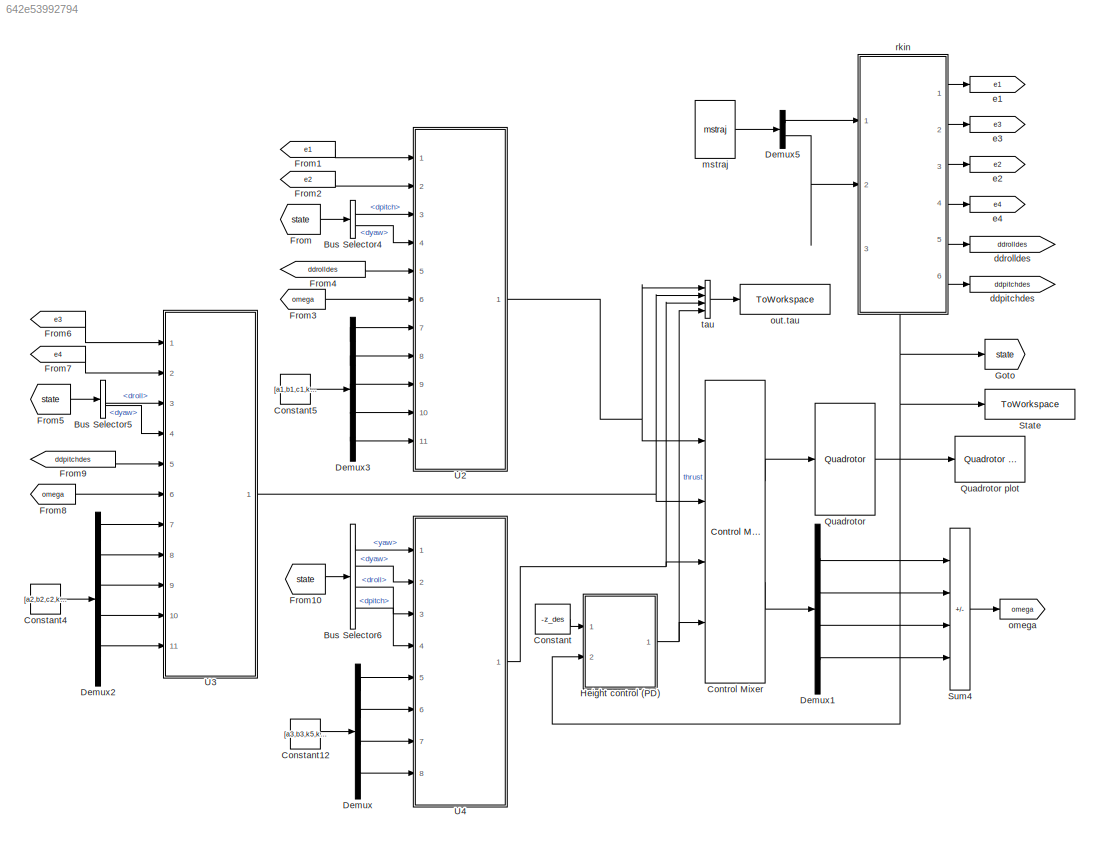
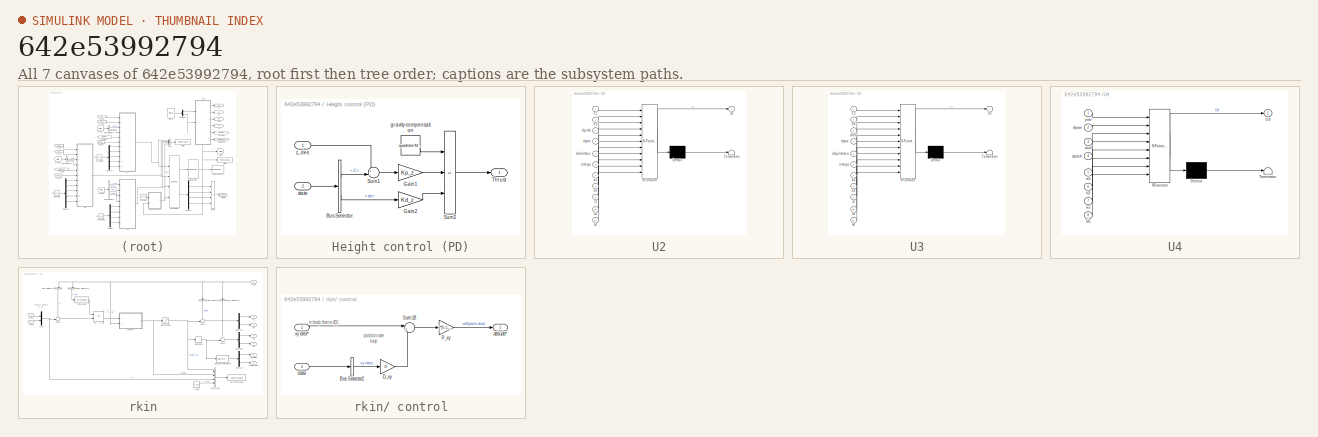
[diagram: thumbnail index - all 7 canvases of the model, root first then tree order]
MODEL slx_642e53992794
KIND model
CONFIG AbsTol = auto
CONFIG EnableMultiTasking = off
CONFIG FixedStep = auto
CONFIG InitFcn = sample_interval = 0.05;\nKp_z = 1000;\nKd_z = 10;\nKp_vel = 0.70;\nKd_vel = 0.2;\nk1 = 65;\nk2 = 25;\nk3 = 65;\nk4 = 25;\nk5 = 60;\nk6 = 55;\nz_des = 5;\n\nmdl_quadrotor;\nJ_x = quadrotor.J(1,1);\nJ_y = quadrotor.J(2,2);\nJ_z = quadrotor.J(3,3);\na1 = (J_y-J_z) / J_x;\na2 = (J_z-J_x) / J_y;\na3 = (J_x-J_y) / J_z;\nb1 = 1 / J_x;\nb2 = 1 / J_y;\nb3 = 1 / J_z;\nc1 = quadrotor.Ir / J_x;\nc2 = quadrotor.Ir / J_y;\nc3 = quadrot...<+12ch>
CONFIG MaxStep = auto
CONFIG MinStep = auto
CONFIG RelTol = 1e-3
CONFIG SampleTimeConstraint = Unconstrained
CONFIG SolverName = VariableStepAuto
CONFIG StartTime = 0.0
CONFIG StopTime = 119.35
BLOCK [BusSelector] Bus Selector4
  OutputSignals = dpitch,dyaw
  Ports = [1, 2]
BLOCK [BusSelector] Bus Selector5
  OutputSignals = droll,dyaw
  Ports = [1, 2]
BLOCK [BusSelector] Bus Selector6
  OutputSignals = yaw,dyaw,droll,dpitch
  Ports = [1, 4]
BLOCK [Constant] Constant
  Value = -z_des
BLOCK [Constant] Constant12
  Value = [a3,b3,k5,k6]
BLOCK [Constant] Constant4
  Value = [a2,b2,c2,k3,k4]
BLOCK [Constant] Constant5
  Value = [a1,b1,c1,k1,k2]
BLOCK [Reference] Control Mixer  REF=roblocks/Vehicles/Control Mixer 4  (lib defined in mdl_2a292b13c81b, mdl_69400f8cfe22, +12 more)
  Ports = [4, 2]
  SourceBlock = roblocks/Vehicles/Control Mixer 4
BLOCK [Demux] Demux
  Ports = [1, 4]
BLOCK [Demux] Demux1
  Ports = [1, 4]
BLOCK [Demux] Demux2
  Outputs = 5
  Ports = [1, 5]
BLOCK [Demux] Demux3
  Outputs = 5
  Ports = [1, 5]
BLOCK [Demux] Demux5
  Outputs = 2
  Ports = [1, 2]
BLOCK [From] From
  GotoTag = state
BLOCK [From] From1
  GotoTag = e1
BLOCK [From] From10
  GotoTag = state
BLOCK [From] From2
  GotoTag = e2
BLOCK [From] From3
  GotoTag = omega
BLOCK [From] From4
  GotoTag = ddrolldes
BLOCK [From] From5
  GotoTag = state
BLOCK [From] From6
  GotoTag = e3
BLOCK [From] From7
  GotoTag = e4
BLOCK [From] From8
  GotoTag = omega
BLOCK [From] From9
  GotoTag = ddpitchdes
BLOCK [Goto] Goto
  GotoTag = state
BLOCK [SubSystem] Height control (PD)
  Ports = [2, 1]
BLOCK [BusSelector] Height control (PD)/Bus Selector
  OutputSignals = Z,dz
  Ports = [1, 2]
BLOCK [Gain] Height control (PD)/Gain1
  Gain = Kp_z
BLOCK [Gain] Height control (PD)/Gain2
  Gain = Kd_z
BLOCK [Sum] Height control (PD)/Sum1
  Inputs = +-|
  Ports = [2, 1]
BLOCK [Sum] Height control (PD)/Sum2
  IconShape = rectangular
  Inputs = +-+
  Ports = [3, 1]
BLOCK [Outport] Height control (PD)/Thrust
BLOCK [Constant] Height control (PD)/gravity compensation
  SampleTime = 0
  Value = quadrotor.M * quadrotor.g
BLOCK [Inport] Height control (PD)/state
  Port = 2
BLOCK [Inport] Height control (PD)/z_des
BLOCK [Reference] Quadrotor  REF=roblocks/Vehicles/Quadrotor  (lib defined in mdl_2a292b13c81b, mdl_69400f8cfe22, +12 more)
  Ports = [1, 1]
  SourceBlock = roblocks/Vehicles/Quadrotor
BLOCK [Reference] Quadrotor plot  REF=roblocks/Vehicles/Quadrotor plot  (lib defined in mdl_2a292b13c81b, mdl_69400f8cfe22, +12 more)
  Commented = on
  Ports = [1]
  SourceBlock = roblocks/Vehicles/Quadrotor plot
BLOCK [ToWorkspace] State
  FixptAsFi = on
  MaxDataPoints = inf
  Ports = [1]
  SampleTime = -1
  SaveFormat = Timeseries
  VariableName = state
BLOCK [Sum] Sum4
  IconShape = rectangular
  Inputs = -+-+
  Ports = [4, 1]
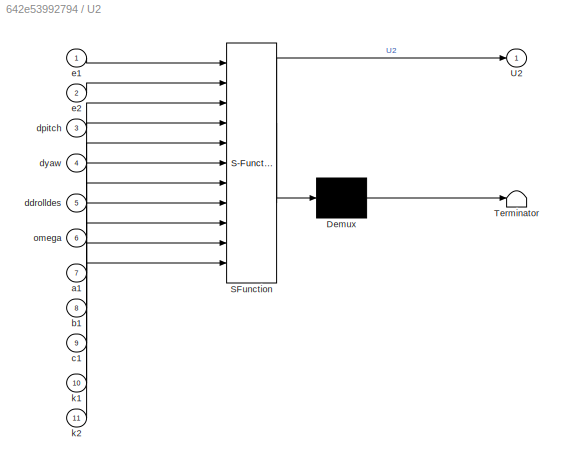
BLOCK [SubSystem] U2
  ErrorFcn = Stateflow.Translate.translate
  PermitHierarchicalResolution = ExplicitOnly
  Ports = [11, 1]
  SFBlockType = MATLAB Function
  TreatAsAtomicUnit = on
BLOCK [Demux] U2/ Demux 
  Outputs = 1
  Ports = [1, 1]
BLOCK [S-Function] U2/ SFunction 
  EnableBusSupport = on
  FunctionName = sf_sfun
  PortCounts = [11 2]
  Ports = [11, 2]
  SFcnIsStateOwnerBlock = off
  SFunctionDeploymentMode = off
  Tag = Stateflow S-Function 2
BLOCK [Terminator] U2/ Terminator 
BLOCK [Outport] U2/U2
BLOCK [Inport] U2/a1
  Port = 7
BLOCK [Inport] U2/b1
  Port = 8
BLOCK [Inport] U2/c1
  Port = 9
BLOCK [Inport] U2/ddrolldes
  Port = 5
BLOCK [Inport] U2/dpitch
  Port = 3
BLOCK [Inport] U2/dyaw
  Port = 4
BLOCK [Inport] U2/e1
BLOCK [Inport] U2/e2
  Port = 2
BLOCK [Inport] U2/k1
  Port = 10
BLOCK [Inport] U2/k2
  Port = 11
BLOCK [Inport] U2/omega
  Port = 6
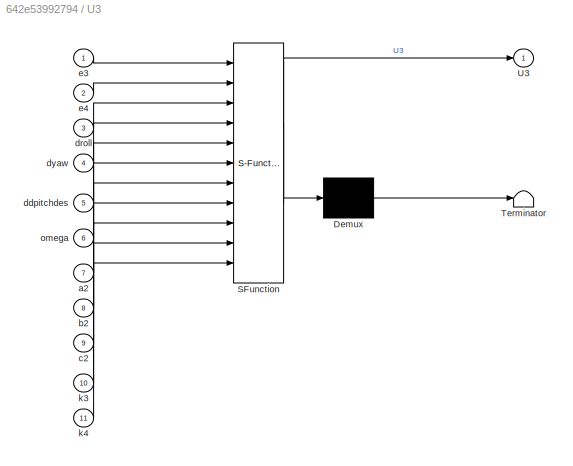
BLOCK [SubSystem] U3
  ErrorFcn = Stateflow.Translate.translate
  PermitHierarchicalResolution = ExplicitOnly
  Ports = [11, 1]
  SFBlockType = MATLAB Function
  TreatAsAtomicUnit = on
BLOCK [Demux] U3/ Demux 
  Outputs = 1
  Ports = [1, 1]
BLOCK [S-Function] U3/ SFunction 
  EnableBusSupport = on
  FunctionName = sf_sfun
  PortCounts = [11 2]
  Ports = [11, 2]
  SFcnIsStateOwnerBlock = off
  SFunctionDeploymentMode = off
  Tag = Stateflow S-Function 1
BLOCK [Terminator] U3/ Terminator 
BLOCK [Outport] U3/U3
BLOCK [Inport] U3/a2
  Port = 7
BLOCK [Inport] U3/b2
  Port = 8
BLOCK [Inport] U3/c2
  Port = 9
BLOCK [Inport] U3/ddpitchdes
  Port = 5
BLOCK [Inport] U3/droll
  Port = 3
BLOCK [Inport] U3/dyaw
  Port = 4
BLOCK [Inport] U3/e3
BLOCK [Inport] U3/e4
  Port = 2
BLOCK [Inport] U3/k3
  Port = 10
BLOCK [Inport] U3/k4
  Port = 11
BLOCK [Inport] U3/omega
  Port = 6
BLOCK [SubSystem] U4
  ErrorFcn = Stateflow.Translate.translate
  PermitHierarchicalResolution = ExplicitOnly
  Ports = [8, 1]
  SFBlockType = MATLAB Function
  TreatAsAtomicUnit = on
BLOCK [Demux] U4/ Demux 
  Outputs = 1
  Ports = [1, 1]
BLOCK [S-Function] U4/ SFunction 
  EnableBusSupport = on
  FunctionName = sf_sfun
  PortCounts = [8 2]
  Ports = [8, 2]
  SFcnIsStateOwnerBlock = off
  SFunctionDeploymentMode = off
  Tag = Stateflow S-Function 3
BLOCK [Terminator] U4/ Terminator 
BLOCK [Outport] U4/U4
BLOCK [Inport] U4/a3
  Port = 5
BLOCK [Inport] U4/b3
  Port = 6
BLOCK [Inport] U4/dpitch
  Port = 4
BLOCK [Inport] U4/droll
  Port = 3
BLOCK [Inport] U4/dyaw
  Port = 2
BLOCK [Inport] U4/k5
  Port = 7
BLOCK [Inport] U4/k6
  Port = 8
BLOCK [Inport] U4/yaw
BLOCK [Goto] ddpitchdes
  GotoTag = ddpitchdes
BLOCK [Goto] ddrolldes
  GotoTag = ddrolldes
BLOCK [Goto] e1
  GotoTag = e1
BLOCK [Goto] e2
  GotoTag = e2
BLOCK [Goto] e3
  GotoTag = e3
BLOCK [Goto] e4
  GotoTag = e4
BLOCK [Reference] mstraj  REF=roblocks/Toolbox/mstraj  (lib defined in mdl_2a292b13c81b, mdl_69400f8cfe22, +12 more)
  Ports = [0, 1]
  SourceBlock = roblocks/Toolbox/mstraj
  SourceType = Trajectory generator
BLOCK [Goto] omega
  GotoTag = omega
BLOCK [ToWorkspace] out.tau
  FixptAsFi = on
  MaxDataPoints = inf
  Ports = [1]
  SampleTime = -1
  SaveFormat = Timeseries
  VariableName = tau
BLOCK [SubSystem] rkin
  PortSchema = {"entries":[{"content":{"sides":[{"content":{"connectorIds":["In1","In2"]},"type":"ConnectorPlacement.EquallySpacedRectSide","uuid":"bc53fbe8-b9b1-4066-88ba-93360a1bcb5e"},{"content":{"connectorIds":["Out1","Out2","Out3","Out4","Out5","Out6"],"side":"RIGHT"},"type":"ConnectorPlacement.EquallySpacedRectSide","uuid":"c29e6e71-3127-4518-8d0d-436f781ab69d"},{"content":{"connectorIds":[],"side":"TOP"},...<+430ch>
  Ports = [3, 6]
BLOCK [SubSystem] rkin/ control
  Ports = [2, 1]
BLOCK [BusSelector] rkin/ control/Bus Selector2
  OutputAsBus = on
  OutputSignals = dx,dy
  Ports = [1, 1]
BLOCK [Gain] rkin/ control/D_xy
  Gain = D
BLOCK [Gain] rkin/ control/P_xy
  Gain = P*[0 1; -1 0]
  Multiplication = Matrix(K*u)
BLOCK [Sum] rkin/ control/Sum18
  Inputs = |+-
  Ports = [2, 1]
BLOCK [Outport] rkin/ control/attitude*
BLOCK [Inport] rkin/ control/state
  Port = 2
BLOCK [Inport] rkin/ control/xy error*
BLOCK [BusSelector] rkin/Bus Selector
  NameLocation = left
  OutputAsBus = on
  OutputSignals = X,Y
  Ports = [1, 1]
BLOCK [BusSelector] rkin/Bus Selector1
  NameLocation = left
  OutputSignals = yaw
  Ports = [1, 1]
BLOCK [BusSelector] rkin/Bus Selector2
  NameLocation = left
  OutputAsBus = on
  OutputSignals = roll,pitch
  Ports = [1, 1]
BLOCK [BusSelector] rkin/Bus Selector3
  NameLocation = left
  OutputAsBus = on
  OutputSignals = droll,dpitch
  Ports = [1, 1]
BLOCK [Demux] rkin/Demux2
  Outputs = 2
  Ports = [1, 2]
BLOCK [Demux] rkin/Demux3
  Outputs = 2
  Ports = [1, 2]
BLOCK [Demux] rkin/Demux4
  Outputs = 2
  Ports = [1, 2]
BLOCK [Derivative] rkin/Derivative
BLOCK [Reference] rkin/Discrete Derivative  REF=simulink/Discrete/Discrete Derivative
  Ports = [1, 1]
  SourceBlock = simulink/Discrete/Discrete Derivative
  SourceType = Discrete Derivative
BLOCK [Mux] rkin/Mux
  DisplayOption = bar
  Inputs = 2
  Ports = [2, 1]
BLOCK [Saturate] rkin/Saturation2
  LowerLimit = deg2rad(-25)
  UpperLimit = deg2rad(25)
BLOCK [BusCreator] rkin/State_des
  DisplayOption = bar
  InheritFromInputs = on
  Inputs = 4
  Ports = [4, 1]
BLOCK [Sum] rkin/Sum1
  Inputs = -+|
  Ports = [2, 1]
BLOCK [Sum] rkin/Sum2
  Inputs = -+|
  Ports = [2, 1]
BLOCK [Sum] rkin/Sum3
  Inputs = -+|
  Ports = [2, 1]
BLOCK [Outport] rkin/ddpitchdes
  Port = 6
BLOCK [Outport] rkin/ddrolldes
  Port = 5
BLOCK [Outport] rkin/e1
BLOCK [Outport] rkin/e2
  Port = 3
BLOCK [Outport] rkin/e3
  Port = 2
BLOCK [Outport] rkin/e4
  Port = 4
BLOCK [ToWorkspace] rkin/out.State_des
  FixptAsFi = on
  MaxDataPoints = inf
  Ports = [1]
  SampleTime = -1
  SaveFormat = Timeseries
  VariableName = state_des
BLOCK [MATLABFcn] rkin/rot2(yaw)'
  MATLABFcn = rot2(u)'
  Output1D = off
  OutputDimensions = [2 2]
  Ports = [1, 1]
BLOCK [Inport] rkin/state
  NameLocation = top
  Port = 3
BLOCK [Inport] rkin/x_des
BLOCK [Inport] rkin/y_des
  Port = 2
BLOCK [Constant] rkin/z_des
  Value = z_des
BLOCK [Product] rkin/{0} --> {B}
  Multiplication = Matrix(*)
  Ports = [2, 1]
  RndMeth = Zero
BLOCK [BusCreator] tau
  DisplayOption = bar
  InheritFromInputs = on
  Inputs = 4
  Ports = [4, 1]
ANNOTATION rkin: desired position in {0}
ANNOTATION rkin: xy error in {B}
ANNOTATION rkin/ control: in body frame {B}
ANNOTATION rkin/ control: position rate loop
LINE Bus Selector4:1 -> U2:3
LINE Bus Selector4:2 -> U2:4
LINE Bus Selector5:1 -> U3:3
LINE Bus Selector5:2 -> U3:4
LINE Bus Selector6:1 -> U4:1
LINE Bus Selector6:2 -> U4:2
LINE Bus Selector6:3 -> U4:3
LINE Bus Selector6:4 -> U4:4
LINE Constant12:1 -> Demux:1
LINE Constant4:1 -> Demux2:1
LINE Constant5:1 -> Demux3:1
LINE Constant:1 -> Height control (PD):1
LINE Control Mixer:1 -> Quadrotor:1
LINE Control Mixer:2 -> Demux1:1
LINE Demux1:1 -> Sum4:1
LINE Demux1:2 -> Sum4:2
LINE Demux1:3 -> Sum4:3
LINE Demux1:4 -> Sum4:4
LINE Demux2:1 -> U3:7
LINE Demux2:2 -> U3:8
LINE Demux2:3 -> U3:9
LINE Demux2:4 -> U3:10
LINE Demux2:5 -> U3:11
LINE Demux3:1 -> U2:7
LINE Demux3:2 -> U2:8
LINE Demux3:3 -> U2:9
LINE Demux3:4 -> U2:10
LINE Demux3:5 -> U2:11
LINE Demux5:1 -> rkin:1
LINE Demux5:2 -> rkin:2
LINE Demux:1 -> U4:5
LINE Demux:2 -> U4:6
LINE Demux:3 -> U4:7
LINE Demux:4 -> U4:8
LINE From10:1 -> Bus Selector6:1
LINE From1:1 -> U2:1
LINE From2:1 -> U2:2
LINE From3:1 -> U2:6
LINE From4:1 -> U2:5
LINE From5:1 -> Bus Selector5:1
LINE From6:1 -> U3:1
LINE From7:1 -> U3:2
LINE From8:1 -> U3:6
LINE From9:1 -> U3:5
LINE From:1 -> Bus Selector4:1
LINE Height control (PD)/Bus Selector:1 -> Height control (PD)/Sum1:2
LINE Height control (PD)/Bus Selector:2 -> Height control (PD)/Gain2:1
LINE Height control (PD)/Gain1:1 -> Height control (PD)/Sum2:2
LINE Height control (PD)/Gain2:1 -> Height control (PD)/Sum2:3
LINE Height control (PD)/Sum1:1 -> Height control (PD)/Gain1:1
LINE Height control (PD)/Sum2:1 -> Height control (PD)/Thrust:1
LINE Height control (PD)/gravity compensation:1 -> Height control (PD)/Sum2:1
LINE Height control (PD)/state:1 -> Height control (PD)/Bus Selector:1
LINE Height control (PD)/z_des:1 -> Height control (PD)/Sum1:1
NET Height control (PD):1 -> Control Mixer:4, tau:4
NET Quadrotor:1 -> Goto:1, Height control (PD):2, Quadrotor plot:1, State:1, rkin:3
LINE Sum4:1 -> omega:1
NET U2:1 -> Control Mixer:1, tau:1
NET U3:1 -> Control Mixer:2, tau:2
NET U4:1 -> Control Mixer:3, tau:3
LINE mstraj:1 -> Demux5:1
LINE rkin/ control/Bus Selector2:1 -> rkin/ control/D_xy:1
LINE rkin/ control/D_xy:1 -> rkin/ control/Sum18:2
LINE rkin/ control/P_xy:1 -> rkin/ control/attitude*:1
LINE rkin/ control/Sum18:1 -> rkin/ control/P_xy:1
LINE rkin/ control/state:1 -> rkin/ control/Bus Selector2:1
LINE rkin/ control/xy error*:1 -> rkin/ control/Sum18:1
NET rkin/ control:1 -> rkin/Saturation2:1, rkin/State_des:2
LINE rkin/Bus Selector1:1 -> rkin/rot2(yaw)':1
LINE rkin/Bus Selector2:1 -> rkin/Sum2:1
LINE rkin/Bus Selector3:1 -> rkin/Sum3:1
LINE rkin/Bus Selector:1 -> rkin/Sum1:1
LINE rkin/Demux2:1 -> rkin/e1:1
LINE rkin/Demux2:2 -> rkin/e3:1
LINE rkin/Demux3:1 -> rkin/e2:1
LINE rkin/Demux3:2 -> rkin/e4:1
LINE rkin/Demux4:1 -> rkin/ddrolldes:1
LINE rkin/Demux4:2 -> rkin/ddpitchdes:1
NET rkin/Derivative:1 -> rkin/Discrete Derivative:1, rkin/Sum3:2
LINE rkin/Discrete Derivative:1 -> rkin/Demux4:1
NET rkin/Mux:1 -> rkin/State_des:3, rkin/Sum1:2
NET rkin/Saturation2:1 -> rkin/Derivative:1, rkin/State_des:1, rkin/Sum2:2
LINE rkin/State_des:1 -> rkin/out.State_des:1
LINE rkin/Sum1:1 -> rkin/{0} --> {B}:2
LINE rkin/Sum2:1 -> rkin/Demux2:1
LINE rkin/Sum3:1 -> rkin/Demux3:1
LINE rkin/rot2(yaw)':1 -> rkin/{0} --> {B}:1
NET rkin/state:1 -> rkin/ control:2, rkin/Bus Selector1:1, rkin/Bus Selector2:1, rkin/Bus Selector3:1, rkin/Bus Selector:1
LINE rkin/x_des:1 -> rkin/Mux:1
LINE rkin/y_des:1 -> rkin/Mux:2
LINE rkin/z_des:1 -> rkin/State_des:4
LINE rkin/{0} --> {B}:1 -> rkin/ control:1
LINE rkin:1 -> e1:1
LINE rkin:2 -> e3:1
LINE rkin:3 -> e2:1
LINE rkin:4 -> e4:1
LINE rkin:5 -> ddrolldes:1
LINE rkin:6 -> ddpitchdes:1
LINE tau:1 -> out.tau:1
note: NET lines group one-source signal fan-out (src -> all destinations, sorted); 1:1 wires keep LINE
CHART U3 states=1 transitions=1
  STATE_LABEL 'eML_blk_kernel()'
  STATE_LABEL 'SCRIPT:\nfunction U3 = fcn(e3,e4,droll,dyaw,ddpitchdes,omega,a2,b2,c2,k3,k4)\n\nU3 = 1 / b2 * (e3 -...\n                droll * dyaw * a2 -...\n                c2 * droll * omega +...\n                ddpitchdes -...\n                k3 * (e4 + k3 * e3) -...\n                k4 * e4);\nend'
CHART U2 states=1 transitions=1
  STATE_LABEL 'eML_blk_kernel()'
  STATE_LABEL 'SCRIPT:\nfunction U2 = fcn(e1,e2,dpitch,dyaw,ddrolldes,omega,a1,b1,c1,k1,k2)\n\nU2 = 1 / b1 * (e1 -...\n                dpitch * dyaw * a1 +...\n                c1 * dpitch * omega +...\n                ddrolldes -...\n                k1 * (e2 + k1 * e1) -...\n                k2 * e2);\nend'
CHART U4 states=1 transitions=1
  STATE_LABEL 'eML_blk_kernel()'
  STATE_LABEL 'SCRIPT:\nfunction U4 = fcn(yaw,dyaw,droll,dpitch,a3,b3,k5,k6)\nddyawdes = 0; \ndyaw_d = 0; \nyaw_d = 0;\ne5 = yaw_d - yaw;\ne6 = dyaw_d - dyaw;\n\nU4 = 1 / b3 * (e5 -...\n                droll * dpitch * a3 +...\n                ddyawdes -...\n                k5 * (e6 + k5 * e5) -...\n                k6 * e6);\nend'
CHART  states=0 transitions=0
CHART  states=0 transitions=0
CHART  states=0 transitions=0
